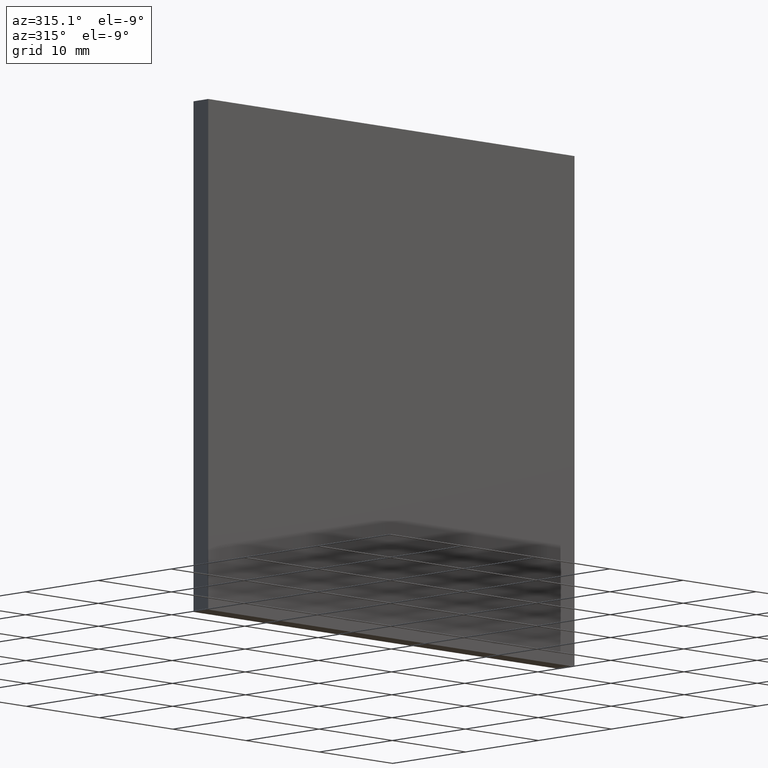
[diagram: clean part render]
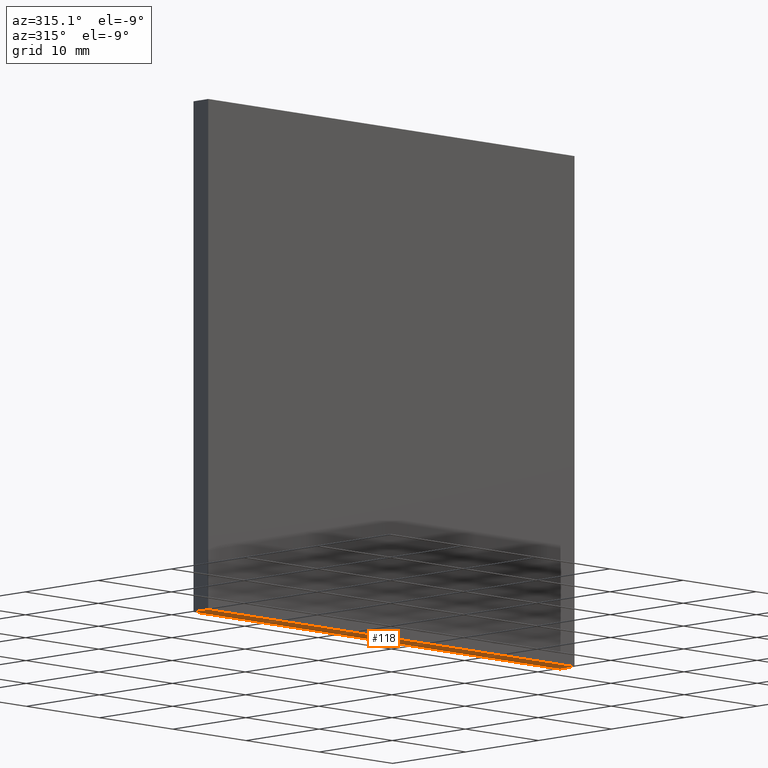
[diagram: same view with one face highlighted and labeled with its STEP entity id]
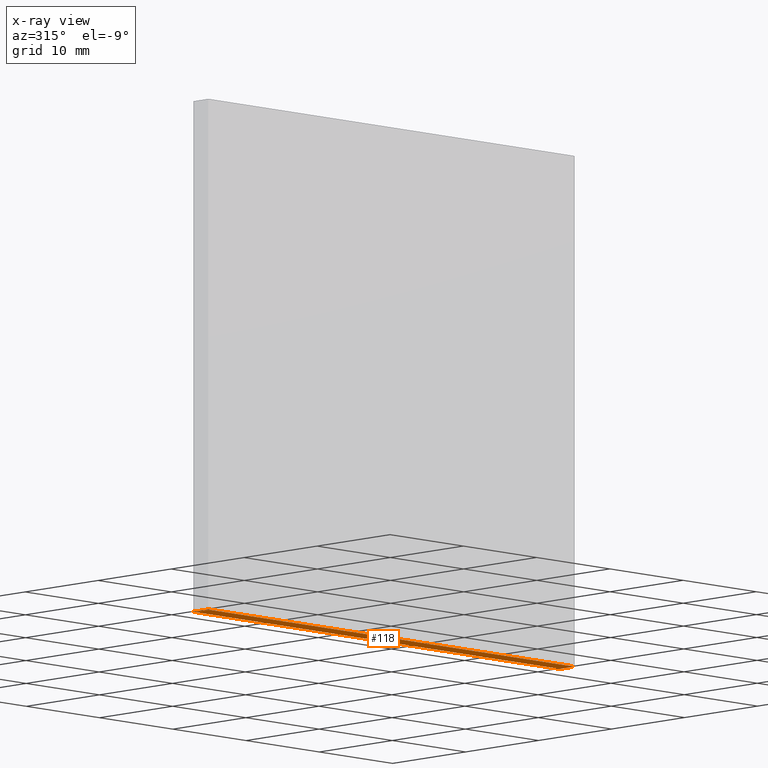
[diagram: x-ray of the same camera — body ghosted, the highlighted face saturated]
A machine part, auxiliary view. The second image highlights one B-rep face of the part: STEP entity #118.
The next image is the same camera in x-ray: the body ghosted, the highlighted face saturated — about 0% of this face is hidden behind the body in this view.
In plain terms, the highlighted planar face has unit normal (0, 0, 1).
Its self-contained STEP definition (entity closure, byte-faithful):
#2 = LINE ( 'NONE', #52, #149 ) ;
#11 = FACE_OUTER_BOUND ( 'NONE', #64, .T. ) ;
#14 = DIRECTION ( 'NONE',  ( -1.000000000000000000, -0.0000000000000000000, -0.0000000000000000000 ) ) ;
#15 = VECTOR ( 'NONE', #14, 1000.000000000000000 ) ;
#18 = VECTOR ( 'NONE', #73, 1000.000000000000000 ) ;
#27 = ORIENTED_EDGE ( 'NONE', *, *, #150, .F. ) ;
#31 = PLANE ( 'NONE',  #112 ) ;
#48 = DIRECTION ( 'NONE',  ( 1.000000000000000000, 0.0000000000000000000, -0.0000000000000000000 ) ) ;
#52 = CARTESIAN_POINT ( 'NONE',  ( -25.00000000000000400, 2.029999999999999800, -25.00000000000000000 ) ) ;
#60 = CARTESIAN_POINT ( 'NONE',  ( -25.00000000000000400, 0.0000000000000000000, -25.00000000000000000 ) ) ;
#61 = EDGE_CURVE ( 'NONE', #109, #97, #66, .T. ) ;
#64 = EDGE_LOOP ( 'NONE', ( #82, #27, #114, #89 ) ) ;
#66 = LINE ( 'NONE', #60, #15 ) ;
#73 = DIRECTION ( 'NONE',  ( -0.0000000000000000000, -1.000000000000000000, -0.0000000000000000000 ) ) ;
#82 = ORIENTED_EDGE ( 'NONE', *, *, #61, .T. ) ;
#84 = CARTESIAN_POINT ( 'NONE',  ( 24.99999999999999600, 2.029999999999999800, -25.00000000000000000 ) ) ;
#86 = CARTESIAN_POINT ( 'NONE',  ( -25.00000000000000400, 2.029999999999999800, -25.00000000000000000 ) ) ;
#88 = VECTOR ( 'NONE', #125, 1000.000000000000000 ) ;
#89 = ORIENTED_EDGE ( 'NONE', *, *, #134, .T. ) ;
#94 = DIRECTION ( 'NONE',  ( 0.0000000000000000000, 0.0000000000000000000, 1.000000000000000000 ) ) ;
#97 = VERTEX_POINT ( 'NONE', #202 ) ;
#107 = CARTESIAN_POINT ( 'NONE',  ( 24.99999999999999600, 2.029999999999999800, -25.00000000000000000 ) ) ;
#109 = VERTEX_POINT ( 'NONE', #132 ) ;
#112 = AXIS2_PLACEMENT_3D ( 'NONE', #178, #94, #48 ) ;
#114 = ORIENTED_EDGE ( 'NONE', *, *, #163, .F. ) ;
#117 = LINE ( 'NONE', #142, #18 ) ;
#118 = ADVANCED_FACE ( 'NONE', ( #11 ), #31, .F. ) ;
#125 = DIRECTION ( 'NONE',  ( -0.0000000000000000000, -1.000000000000000000, -0.0000000000000000000 ) ) ;
#132 = CARTESIAN_POINT ( 'NONE',  ( 24.99999999999999600, 0.0000000000000000000, -25.00000000000000000 ) ) ;
#134 = EDGE_CURVE ( 'NONE', #152, #109, #158, .T. ) ;
#142 = CARTESIAN_POINT ( 'NONE',  ( -25.00000000000000400, 2.029999999999999800, -25.00000000000000000 ) ) ;
#149 = VECTOR ( 'NONE', #192, 1000.000000000000000 ) ;
#150 = EDGE_CURVE ( 'NONE', #200, #97, #117, .T. ) ;
#152 = VERTEX_POINT ( 'NONE', #107 ) ;
#158 = LINE ( 'NONE', #84, #88 ) ;
#163 = EDGE_CURVE ( 'NONE', #152, #200, #2, .T. ) ;
#178 = CARTESIAN_POINT ( 'NONE',  ( -25.00000000000000400, 2.029999999999999800, -25.00000000000000000 ) ) ;
#192 = DIRECTION ( 'NONE',  ( -1.000000000000000000, -0.0000000000000000000, -0.0000000000000000000 ) ) ;
#200 = VERTEX_POINT ( 'NONE', #86 ) ;
#202 = CARTESIAN_POINT ( 'NONE',  ( -25.00000000000000400, 0.0000000000000000000, -25.00000000000000000 ) ) ;